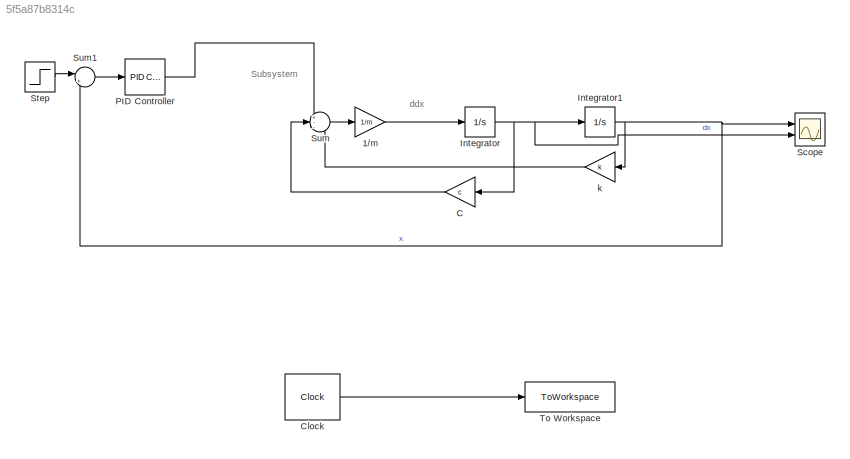
MODEL slx_5f5a87b8314c
KIND model
CONFIG AbsTol = auto
CONFIG EnableMultiTasking = off
CONFIG FixedStep = sim_step
CONFIG MaxStep = 0.001
CONFIG MinStep = auto
CONFIG RelTol = 1e-3
CONFIG SampleTimeConstraint = Unconstrained
CONFIG SolverName = ode4
CONFIG StartTime = 0.0
CONFIG StopTime = sim_time
BLOCK [Gain] 1//m
  Gain = 1/m
BLOCK [Gain] C
  Gain = c
BLOCK [Clock] Clock
  DisplayTime = on
BLOCK [Integrator] Integrator
  InitialCondition = dx_ini
  Ports = [1, 1]
BLOCK [Integrator] Integrator1
  InitialCondition = x_ini
  Ports = [1, 1]
BLOCK [Reference] PID Controller  REF=pid_lib/PID Controller
  Ports = [1, 1]
  SourceBlock = pid_lib/PID Controller
  SourceType = PID 1dof
BLOCK [Scope] Scope
  Floating = off
  NumInputPorts = 2
  Ports = [2]
  ScopeSpecificationString = Simulink.scopes.TimeScopeBlockCfg('CurrentConfiguration', extmgr.ConfigurationSet(extmgr.Configuration('Core','General UI',true),extmgr.Configuration('Core','Source UI',true),extmgr.Configuration('Sources','WiredSimulink',true),extmgr.Configuration('Visuals','Time Domain',true,'SerializedDisplays',{struct('MinYLimReal','-10.08074','MaxYLimReal','10.07058','YLabelReal','','MinYLimMag','0.00000','Ma...<+1363ch>
BLOCK [Step] Step
  SampleTime = 0
BLOCK [Sum] Sum
  Inputs = +--
  Ports = [3, 1]
BLOCK [Sum] Sum1
  Inputs = |+-
  Ports = [2, 1]
BLOCK [ToWorkspace] To Workspace
  FixptAsFi = on
  MaxDataPoints = inf
  Ports = [1]
  SampleTime = -1
  SaveFormat = Timeseries
  VariableName = simout
BLOCK [Gain] k
  Gain = k
ANNOTATION (root): ddx
ANNOTATION (root): Subsystem
LINE 1//m:1 -> Integrator:1
LINE C:1 -> Sum:2
LINE Clock:1 -> To Workspace:1
NET Integrator1:1 -> Scope:1, Sum1:2, k:1
NET Integrator:1 -> C:1, Integrator1:1, Scope:2
LINE PID Controller:1 -> Sum:1
LINE Step:1 -> Sum1:1
LINE Sum1:1 -> PID Controller:1
LINE Sum:1 -> 1//m:1
LINE k:1 -> Sum:3
note: NET lines group one-source signal fan-out (src -> all destinations, sorted); 1:1 wires keep LINE
